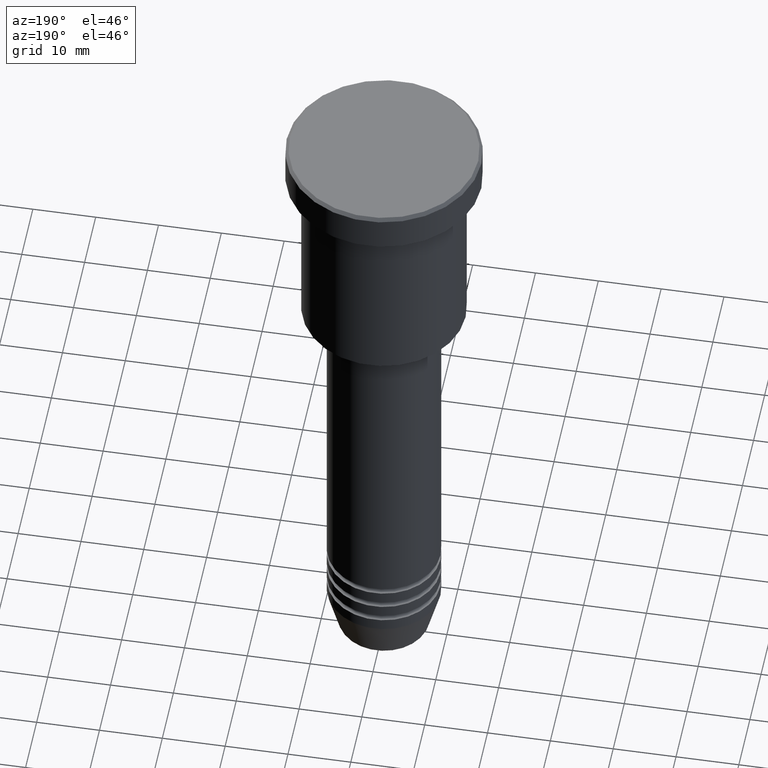
[diagram: clean part render]
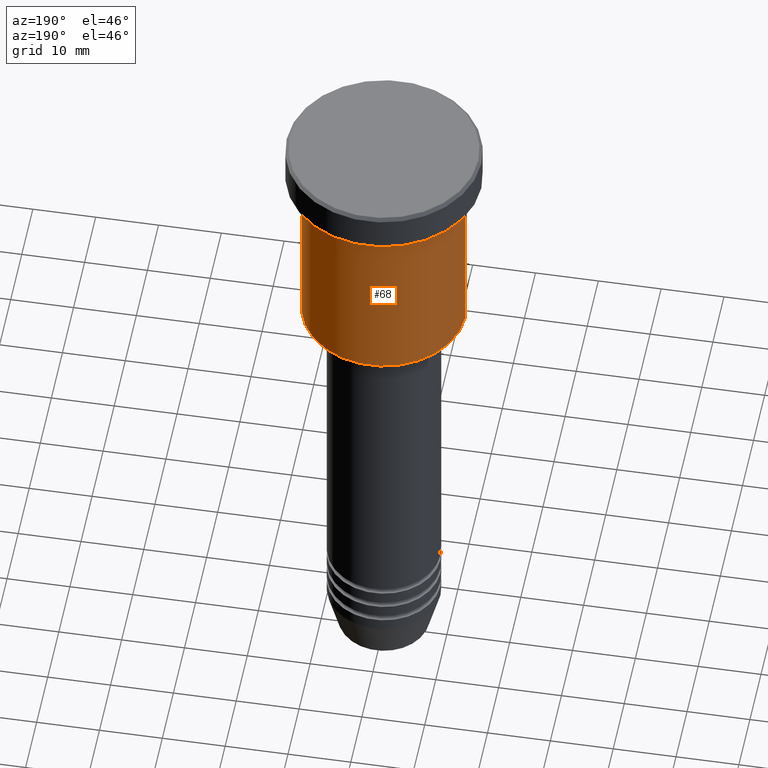
[diagram: same view with one face highlighted and labeled with its STEP entity id]
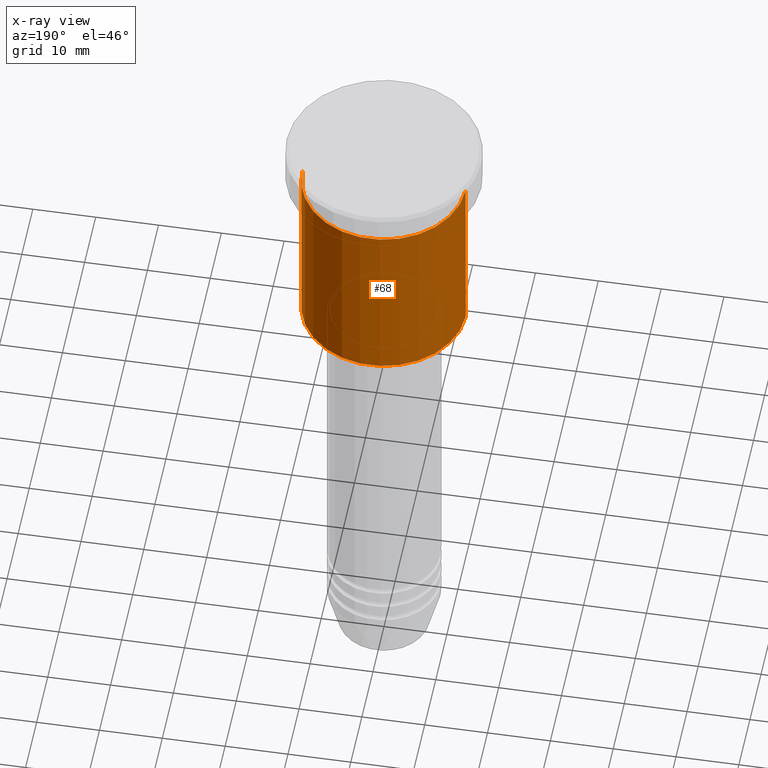
[diagram: x-ray of the same camera — body ghosted, the highlighted face saturated]
A machine part, auxiliary view. The second image highlights one B-rep face of the part: STEP entity #68.
The next image is the same camera in x-ray: the body ghosted, the highlighted face saturated — about 0% of this face is hidden behind the body in this view.
In plain terms, the highlighted cylindrical surface (partial cylindrical patch) has radius 13 mm, axis along (-0, -0, 1).
Its self-contained STEP definition (entity closure, byte-faithful):
#2 = EDGE_CURVE ( 'NONE', #1043, #1062, #777, .T. ) ;
#32 = DIRECTION ( 'NONE',  ( -0.000000000000000000, -0.000000000000000000, 1.000000000000000000 ) ) ;
#37 = VERTEX_POINT ( 'NONE', #762 ) ;
#41 = DIRECTION ( 'NONE',  ( -0.000000000000000000, -0.000000000000000000, 1.000000000000000000 ) ) ;
#49 = FACE_OUTER_BOUND ( 'NONE', #964, .T. ) ;
#50 = ORIENTED_EDGE ( 'NONE', *, *, #740, .T. ) ;
#68 = ADVANCED_FACE ( 'NONE', ( #49 ), #129, .T. ) ;
#86 = AXIS2_PLACEMENT_3D ( 'NONE', #746, #1030, #201 ) ;
#121 = ORIENTED_EDGE ( 'NONE', *, *, #902, .F. ) ;
#129 = CYLINDRICAL_SURFACE ( 'NONE', #698, 13.00000000000000000 ) ;
#138 = DIRECTION ( 'NONE',  ( 1.000000000000000000, 0.000000000000000000, 0.000000000000000000 ) ) ;
#201 = DIRECTION ( 'NONE',  ( -1.000000000000000000, 0.000000000000000000, 0.000000000000000000 ) ) ;
#235 = CIRCLE ( 'NONE', #86, 13.00000000000000000 ) ;
#287 = EDGE_CURVE ( 'NONE', #37, #809, #550, .T. ) ;
#451 = DIRECTION ( 'NONE',  ( -0.000000000000000000, -0.000000000000000000, 1.000000000000000000 ) ) ;
#476 = CIRCLE ( 'NONE', #515, 13.00000000000000000 ) ;
#501 = ORIENTED_EDGE ( 'NONE', *, *, #2, .F. ) ;
#515 = AXIS2_PLACEMENT_3D ( 'NONE', #858, #1036, #1122 ) ;
#520 = CARTESIAN_POINT ( 'NONE',  ( 13.00000000000000000, 0.000000000000000000, -35.49999999999999289 ) ) ;
#550 = LINE ( 'NONE', #925, #1092 ) ;
#698 = AXIS2_PLACEMENT_3D ( 'NONE', #861, #32, #138 ) ;
#740 = EDGE_CURVE ( 'NONE', #1043, #37, #235, .T. ) ;
#746 = CARTESIAN_POINT ( 'NONE',  ( 0.000000000000000000, 0.000000000000000000, -35.49999999999999289 ) ) ;
#762 = CARTESIAN_POINT ( 'NONE',  ( -13.00000000000000000, 1.592040838891559095E-15, -35.49999999999999289 ) ) ;
#777 = LINE ( 'NONE', #855, #1113 ) ;
#809 = VERTEX_POINT ( 'NONE', #1007 ) ;
#855 = CARTESIAN_POINT ( 'NONE',  ( 13.00000000000000000, 0.000000000000000000, 0.000000000000000000 ) ) ;
#858 = CARTESIAN_POINT ( 'NONE',  ( 0.000000000000000000, 0.000000000000000000, -6.999999999999995559 ) ) ;
#861 = CARTESIAN_POINT ( 'NONE',  ( 0.000000000000000000, 0.000000000000000000, 0.000000000000000000 ) ) ;
#902 = EDGE_CURVE ( 'NONE', #1062, #809, #476, .T. ) ;
#904 = ORIENTED_EDGE ( 'NONE', *, *, #287, .T. ) ;
#925 = CARTESIAN_POINT ( 'NONE',  ( -13.00000000000000000, 1.592040838891559095E-15, 0.000000000000000000 ) ) ;
#964 = EDGE_LOOP ( 'NONE', ( #50, #904, #121, #501 ) ) ;
#977 = CARTESIAN_POINT ( 'NONE',  ( 13.00000000000000000, 0.000000000000000000, -6.999999999999995559 ) ) ;
#1007 = CARTESIAN_POINT ( 'NONE',  ( -13.00000000000000000, 1.592040838891559095E-15, -6.999999999999995559 ) ) ;
#1030 = DIRECTION ( 'NONE',  ( -0.000000000000000000, -0.000000000000000000, 1.000000000000000000 ) ) ;
#1036 = DIRECTION ( 'NONE',  ( -0.000000000000000000, -0.000000000000000000, 1.000000000000000000 ) ) ;
#1043 = VERTEX_POINT ( 'NONE', #520 ) ;
#1062 = VERTEX_POINT ( 'NONE', #977 ) ;
#1092 = VECTOR ( 'NONE', #451, 1000.000000000000000 ) ;
#1113 = VECTOR ( 'NONE', #41, 1000.000000000000000 ) ;
#1122 = DIRECTION ( 'NONE',  ( 1.000000000000000000, 0.000000000000000000, 0.000000000000000000 ) ) ;